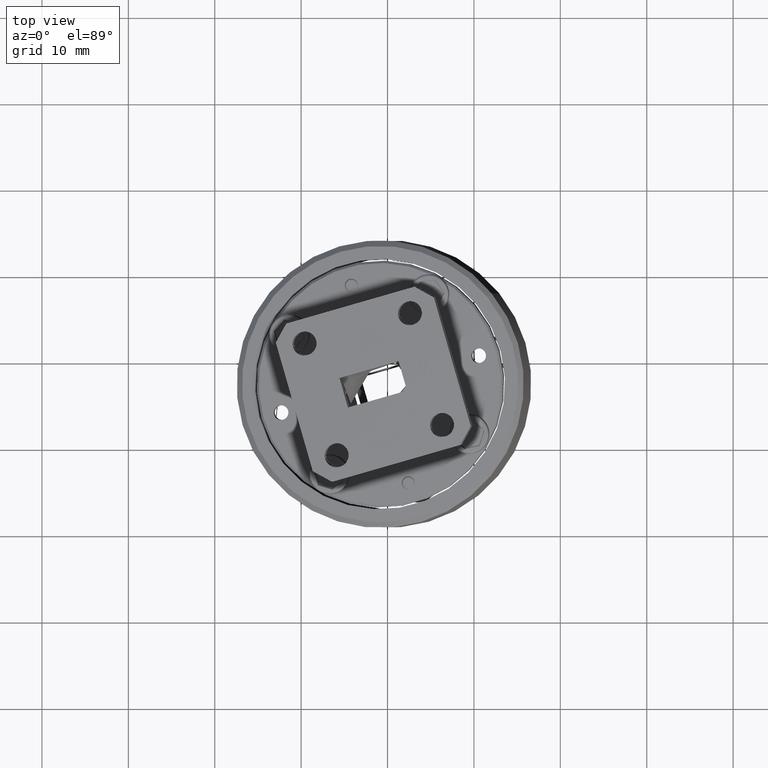
[diagram: clean part render]
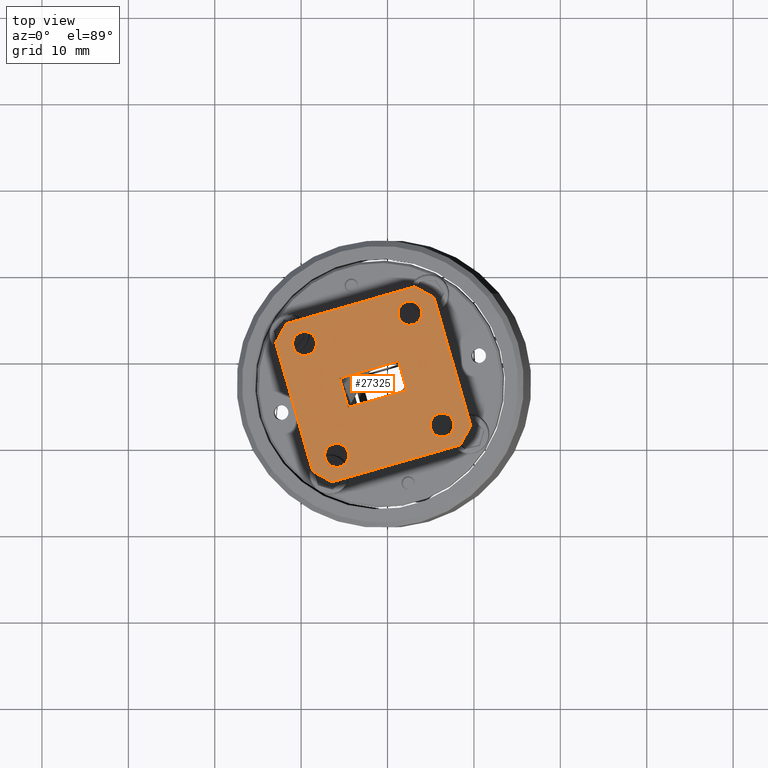
[diagram: same view with one face highlighted and labeled with its STEP entity id]
A machine part, top view. The second image highlights one B-rep face of the part: STEP entity #27325.
In plain terms, the highlighted planar face has unit normal (-0.0356, -0.0182, 0.9992).
Its self-contained STEP definition (entity closure, byte-faithful):
#22 = EDGE_CURVE ( 'NONE', #21384, #1998, #8473, .T. ) ;
#139 = VERTEX_POINT ( 'NONE', #38633 ) ;
#142 = FACE_BOUND ( 'NONE', #23208, .T. ) ;
#549 = CARTESIAN_POINT ( 'NONE',  ( -5.970583920700338600, -2.109734498378895000, 0.3332750552477059000 ) ) ;
#566 = CARTESIAN_POINT ( 'NONE',  ( -5.604788068984699800, -2.280394310620610800, 0.3432060932553792100 ) ) ;
#846 = VECTOR ( 'NONE', #9103, 39.37007874015748100 ) ;
#988 = DIRECTION ( 'NONE',  ( -0.9604149777040066300, -0.2757921029617932400, -0.03926558984306710600 ) ) ;
#1081 = FACE_BOUND ( 'NONE', #24406, .T. ) ;
#1582 = AXIS2_PLACEMENT_3D ( 'NONE', #549, #21269, #12058 ) ;
#1657 = DIRECTION ( 'NONE',  ( -0.9604149777040066300, -0.2757921029617932400, -0.03926558984306710600 ) ) ;
#1950 = ORIENTED_EDGE ( 'NONE', *, *, #38523, .T. ) ;
#1971 = ORIENTED_EDGE ( 'NONE', *, *, #36598, .T. ) ;
#1998 = VERTEX_POINT ( 'NONE', #21220 ) ;
#2149 = EDGE_CURVE ( 'NONE', #17209, #21824, #9108, .T. ) ;
#2582 = CARTESIAN_POINT ( 'NONE',  ( -5.803696040588877600, -1.786109592896608900, 0.3451222499993759600 ) ) ;
#2610 = EDGE_CURVE ( 'NONE', #29852, #9444, #30460, .T. ) ;
#2852 = LINE ( 'NONE', #36125, #33567 ) ;
#2909 = EDGE_CURVE ( 'NONE', #4630, #16173, #9062, .T. ) ;
#3055 = DIRECTION ( 'NONE',  ( 0.9604149777040063000, 0.2757921029617946300, 0.03926558984306730000 ) ) ;
#3461 = CARTESIAN_POINT ( 'NONE',  ( -5.751219797613774000, -1.771040551136935100, 0.3472676878371859200 ) ) ;
#3643 = VECTOR ( 'NONE', #3055, 39.37007874015748100 ) ;
#3885 = EDGE_CURVE ( 'NONE', #17209, #30244, #5714, .T. ) ;
#4270 = ORIENTED_EDGE ( 'NONE', *, *, #24807, .T. ) ;
#4435 = DIRECTION ( 'NONE',  ( 0.03562249074304842800, 0.01820857446431912300, -0.9991994225224706300 ) ) ;
#4630 = VERTEX_POINT ( 'NONE', #32807 ) ;
#4828 = ORIENTED_EDGE ( 'NONE', *, *, #2149, .F. ) ;
#5209 = DIRECTION ( 'NONE',  ( 0.03562249074304842800, 0.01820857446431912300, -0.9991994225224706300 ) ) ;
#5222 = DIRECTION ( 'NONE',  ( -0.9604149777040063000, -0.2757921029617945700, -0.03926558984306729300 ) ) ;
#5288 = CARTESIAN_POINT ( 'NONE',  ( -6.336379772415983600, -1.939074686137180100, 0.3233440172400323700 ) ) ;
#5363 = ORIENTED_EDGE ( 'NONE', *, *, #16424, .T. ) ;
#5580 = DIRECTION ( 'NONE',  ( -0.9604149777040066300, -0.2757921029617932400, -0.03926558984306710600 ) ) ;
#5714 = LINE ( 'NONE', #10137, #35502 ) ;
#6049 = EDGE_CURVE ( 'NONE', #29852, #30244, #17303, .T. ) ;
#6190 = PLANE ( 'NONE',  #1582 ) ;
#6285 = DIRECTION ( 'NONE',  ( 0.03562249074304842800, 0.01820857446431912300, -0.9991994225224706300 ) ) ;
#6518 = VERTEX_POINT ( 'NONE', #37230 ) ;
#6751 = CARTESIAN_POINT ( 'NONE',  ( -5.803696040588877600, -1.786109592896608900, 0.3451222499993759600 ) ) ;
#6842 = AXIS2_PLACEMENT_3D ( 'NONE', #12528, #6285, #24101 ) ;
#7144 = FACE_BOUND ( 'NONE', #14467, .T. ) ;
#7317 = DIRECTION ( 'NONE',  ( 0.8744798459300646700, -0.4845468495598424500, 0.02234613263546235400 ) ) ;
#8382 = CARTESIAN_POINT ( 'NONE',  ( -6.085701977948645000, -2.215618530838559400, 0.3272414356494379200 ) ) ;
#8436 = CARTESIAN_POINT ( 'NONE',  ( -6.415006852871170100, -1.920037864079152200, 0.3208877917875951300 ) ) ;
#8473 = CIRCLE ( 'NONE', #30361, 0.05463913432561672700 ) ;
#8531 = CARTESIAN_POINT ( 'NONE',  ( -5.709740554934906100, -2.310532394139958300, 0.3389152175797593400 ) ) ;
#9062 = LINE ( 'NONE', #16565, #36046 ) ;
#9103 = DIRECTION ( 'NONE',  ( -0.2762862804322258600, 0.9610448292144796500, 0.007663386003408402400 ) ) ;
#9108 = LINE ( 'NONE', #30177, #31863 ) ;
#9277 = DIRECTION ( 'NONE',  ( -0.9604149777040066300, -0.2757921029617932400, -0.03926558984306710600 ) ) ;
#9444 = VERTEX_POINT ( 'NONE', #8436 ) ;
#9607 = AXIS2_PLACEMENT_3D ( 'NONE', #33169, #9674, #9277 ) ;
#9674 = DIRECTION ( 'NONE',  ( 0.03562249074304842800, 0.01820857446431912300, -0.9991994225224706300 ) ) ;
#10065 = CARTESIAN_POINT ( 'NONE',  ( -5.657264311959802500, -2.295463352380284800, 0.3410606554175693000 ) ) ;
#10137 = CARTESIAN_POINT ( 'NONE',  ( -5.737980163627933700, -1.689209941438961900, 0.3492309070355076300 ) ) ;
#10145 = CARTESIAN_POINT ( 'NONE',  ( -5.781264707662702800, -1.665226096020117700, 0.3481248299011195400 ) ) ;
#10226 = LINE ( 'NONE', #37087, #12532 ) ;
#10259 = ORIENTED_EDGE ( 'NONE', *, *, #22, .T. ) ;
#10381 = EDGE_LOOP ( 'NONE', ( #13289, #29678, #36146, #1971, #31668, #11341, #4828, #18868 ) ) ;
#10751 = DIRECTION ( 'NONE',  ( 0.9604149777040063000, 0.2757921029617945700, 0.03926558984306729300 ) ) ;
#11008 = CARTESIAN_POINT ( 'NONE',  ( -5.714035659223422500, -1.645920648812792000, 0.3508734211901343200 ) ) ;
#11034 = VECTOR ( 'NONE', #18164, 39.37007874015748100 ) ;
#11323 = VECTOR ( 'NONE', #7317, 39.37007874015749600 ) ;
#11341 = ORIENTED_EDGE ( 'NONE', *, *, #30822, .T. ) ;
#12058 = DIRECTION ( 'NONE',  ( 0.9604149777040063000, 0.2757921029617946300, 0.03926558984306730000 ) ) ;
#12257 = CARTESIAN_POINT ( 'NONE',  ( -5.657264311959802500, -2.295463352380284800, 0.3410606554175693000 ) ) ;
#12528 = CARTESIAN_POINT ( 'NONE',  ( -6.137471800811806800, -2.433359403861182100, 0.3214278604960356700 ) ) ;
#12532 = VECTOR ( 'NONE', #19399, 39.37007874015748100 ) ;
#12817 = CARTESIAN_POINT ( 'NONE',  ( -6.084995557836703200, -2.418290362101508200, 0.3235732983338455700 ) ) ;
#13003 = DIRECTION ( 'NONE',  ( 0.03562249074304842800, 0.01820857446431912300, -0.9991994225224706300 ) ) ;
#13193 = CARTESIAN_POINT ( 'NONE',  ( -6.203187677772744400, -2.530259055318827800, 0.3173192034599041600 ) ) ;
#13209 = FACE_OUTER_BOUND ( 'NONE', #10381, .T. ) ;
#13270 = CARTESIAN_POINT ( 'NONE',  ( -6.283903529440880000, -1.924005644377506400, 0.3254894550778423300 ) ) ;
#13289 = ORIENTED_EDGE ( 'NONE', *, *, #6049, .F. ) ;
#13455 = LINE ( 'NONE', #20611, #3643 ) ;
#13540 = DIRECTION ( 'NONE',  ( -0.9604149777040066300, -0.2757921029617932400, -0.03926558984306710600 ) ) ;
#13882 = ORIENTED_EDGE ( 'NONE', *, *, #14299, .T. ) ;
#13934 = LINE ( 'NONE', #14538, #846 ) ;
#14299 = EDGE_CURVE ( 'NONE', #29209, #139, #37002, .T. ) ;
#14467 = EDGE_LOOP ( 'NONE', ( #37753, #13882 ) ) ;
#14538 = CARTESIAN_POINT ( 'NONE',  ( -6.085701977948645000, -2.215618530838559400, 0.3272414356494379200 ) ) ;
#15070 = FACE_BOUND ( 'NONE', #29027, .T. ) ;
#15427 = CARTESIAN_POINT ( 'NONE',  ( -5.816785784191521800, -2.138396742009256900, 0.3382358008054967000 ) ) ;
#15467 = CARTESIAN_POINT ( 'NONE',  ( -6.246472221807513500, -2.506275209899983600, 0.3162131263255160700 ) ) ;
#16173 = VERTEX_POINT ( 'NONE', #8382 ) ;
#16424 = EDGE_CURVE ( 'NONE', #1998, #21384, #34075, .T. ) ;
#16565 = CARTESIAN_POINT ( 'NONE',  ( -5.816785784191521800, -2.138396742009256900, 0.3382358008054967000 ) ) ;
#17209 = VERTEX_POINT ( 'NONE', #24033 ) ;
#17223 = EDGE_CURVE ( 'NONE', #30253, #9444, #2852, .T. ) ;
#17303 = LINE ( 'NONE', #11008, #36369 ) ;
#17395 = ORIENTED_EDGE ( 'NONE', *, *, #27872, .T. ) ;
#18018 = AXIS2_PLACEMENT_3D ( 'NONE', #2582, #23404, #5580 ) ;
#18164 = DIRECTION ( 'NONE',  ( 0.2762862804322258600, -0.9610448292144796500, -0.007663386003408402400 ) ) ;
#18278 = EDGE_CURVE ( 'NONE', #26118, #26319, #25173, .T. ) ;
#18848 = VERTEX_POINT ( 'NONE', #31383 ) ;
#18868 = ORIENTED_EDGE ( 'NONE', *, *, #3885, .T. ) ;
#19399 = DIRECTION ( 'NONE',  ( 0.4837520410451947600, 0.8745757819638093600, 0.03318379705518266500 ) ) ;
#19500 = DIRECTION ( 'NONE',  ( 0.03562249074304842800, 0.01820857446431912300, -0.9991994225224706300 ) ) ;
#19945 = EDGE_CURVE ( 'NONE', #23417, #37189, #27073, .T. ) ;
#20611 = CARTESIAN_POINT ( 'NONE',  ( -5.855465863452034000, -2.003850465919229800, 0.3393086748459738800 ) ) ;
#21220 = CARTESIAN_POINT ( 'NONE',  ( -6.189948043786909400, -2.448428445620856000, 0.3192824226582257600 ) ) ;
#21269 = DIRECTION ( 'NONE',  ( -0.03562249074304843500, -0.01820857446431912300, 0.9991994225224707400 ) ) ;
#21384 = VERTEX_POINT ( 'NONE', #12817 ) ;
#21570 = VERTEX_POINT ( 'NONE', #31107 ) ;
#21658 = EDGE_CURVE ( 'NONE', #6518, #21570, #25141, .T. ) ;
#21824 = VERTEX_POINT ( 'NONE', #26825 ) ;
#22270 = EDGE_CURVE ( 'NONE', #16173, #34546, #13934, .T. ) ;
#22738 = CARTESIAN_POINT ( 'NONE',  ( -6.231427286465776500, -1.908936602617832700, 0.3276348929156522300 ) ) ;
#22790 = CARTESIAN_POINT ( 'NONE',  ( -5.506820948899251900, -2.366704270723651400, 0.3451258816875780200 ) ) ;
#23208 = EDGE_LOOP ( 'NONE', ( #17395, #24760 ) ) ;
#23404 = DIRECTION ( 'NONE',  ( 0.03562249074304842800, 0.01820857446431912300, -0.9991994225224706300 ) ) ;
#23417 = VERTEX_POINT ( 'NONE', #566 ) ;
#23420 = CARTESIAN_POINT ( 'NONE',  ( -6.137471800811806800, -2.433359403861182100, 0.3214278604960356700 ) ) ;
#24033 = CARTESIAN_POINT ( 'NONE',  ( -5.694695619593165500, -1.713193786857806000, 0.3503369841698956700 ) ) ;
#24101 = DIRECTION ( 'NONE',  ( -0.9604149777040066300, -0.2757921029617932400, -0.03926558984306710600 ) ) ;
#24406 = EDGE_LOOP ( 'NONE', ( #5363, #10259 ) ) ;
#24493 = ORIENTED_EDGE ( 'NONE', *, *, #27878, .T. ) ;
#24760 = ORIENTED_EDGE ( 'NONE', *, *, #18278, .T. ) ;
#24807 = EDGE_CURVE ( 'NONE', #18848, #4630, #35707, .T. ) ;
#25141 = LINE ( 'NONE', #22790, #26058 ) ;
#25173 = CIRCLE ( 'NONE', #25591, 0.05463913432561672700 ) ;
#25591 = AXIS2_PLACEMENT_3D ( 'NONE', #13270, #19500, #1657 ) ;
#26025 = DIRECTION ( 'NONE',  ( -0.9604149777040066300, -0.2757921029617932400, -0.03926558984306710600 ) ) ;
#26058 = VECTOR ( 'NONE', #5222, 39.37007874015748900 ) ;
#26118 = VERTEX_POINT ( 'NONE', #22738 ) ;
#26192 = CIRCLE ( 'NONE', #9607, 0.05463913432561672700 ) ;
#26319 = VERTEX_POINT ( 'NONE', #5288 ) ;
#26825 = CARTESIAN_POINT ( 'NONE',  ( -5.526160988529508900, -2.299431132678638100, 0.3456623187078165500 ) ) ;
#26969 = EDGE_CURVE ( 'NONE', #139, #29209, #29496, .T. ) ;
#27073 = CIRCLE ( 'NONE', #31080, 0.05463913432561672700 ) ;
#27325 = ADVANCED_FACE ( 'NONE', ( #29021, #1081, #142, #15070, #7144, #13209 ), #6190, .T. ) ;
#27585 = DIRECTION ( 'NONE',  ( 0.2762862804322258600, -0.9610448292144796500, -0.007663386003408402400 ) ) ;
#27666 = ORIENTED_EDGE ( 'NONE', *, *, #19945, .T. ) ;
#27872 = EDGE_CURVE ( 'NONE', #26319, #26118, #26192, .T. ) ;
#27878 = EDGE_CURVE ( 'NONE', #37189, #23417, #34078, .T. ) ;
#28234 = CARTESIAN_POINT ( 'NONE',  ( -6.124382057209156300, -2.081072254748532300, 0.3283143096899149800 ) ) ;
#28940 = DIRECTION ( 'NONE',  ( -0.4837520410451947600, -0.8745757819638093600, -0.03318379705518266500 ) ) ;
#29021 = FACE_BOUND ( 'NONE', #32551, .T. ) ;
#29027 = EDGE_LOOP ( 'NONE', ( #31033, #1950, #4270, #32698 ) ) ;
#29209 = VERTEX_POINT ( 'NONE', #3461 ) ;
#29450 = LINE ( 'NONE', #13193, #11323 ) ;
#29496 = CIRCLE ( 'NONE', #31482, 0.05463913432561672700 ) ;
#29678 = ORIENTED_EDGE ( 'NONE', *, *, #2610, .T. ) ;
#29852 = VERTEX_POINT ( 'NONE', #36719 ) ;
#30067 = DIRECTION ( 'NONE',  ( -0.9604149777040066300, -0.2757921029617932400, -0.03926558984306710600 ) ) ;
#30177 = CARTESIAN_POINT ( 'NONE',  ( -5.506820948899251900, -2.366704270723651400, 0.3451258816875780200 ) ) ;
#30244 = VERTEX_POINT ( 'NONE', #10145 ) ;
#30253 = VERTEX_POINT ( 'NONE', #15467 ) ;
#30361 = AXIS2_PLACEMENT_3D ( 'NONE', #23420, #5209, #26025 ) ;
#30448 = DIRECTION ( 'NONE',  ( 0.03562249074304842800, 0.01820857446431912300, -0.9991994225224706300 ) ) ;
#30460 = LINE ( 'NONE', #35054, #33258 ) ;
#30822 = EDGE_CURVE ( 'NONE', #6518, #21824, #10226, .T. ) ;
#30914 = DIRECTION ( 'NONE',  ( -0.8744798459300646700, 0.4845468495598424500, -0.02234613263546235400 ) ) ;
#31033 = ORIENTED_EDGE ( 'NONE', *, *, #22270, .T. ) ;
#31080 = AXIS2_PLACEMENT_3D ( 'NONE', #10065, #4435, #13540 ) ;
#31107 = CARTESIAN_POINT ( 'NONE',  ( -6.159903133737976200, -2.554242900737671900, 0.3184252805942922000 ) ) ;
#31383 = CARTESIAN_POINT ( 'NONE',  ( -5.855465863452034000, -2.003850465919229800, 0.3393086748459738800 ) ) ;
#31482 = AXIS2_PLACEMENT_3D ( 'NONE', #6751, #13003, #988 ) ;
#31668 = ORIENTED_EDGE ( 'NONE', *, *, #21658, .F. ) ;
#31863 = VECTOR ( 'NONE', #27585, 39.37007874015748100 ) ;
#32551 = EDGE_LOOP ( 'NONE', ( #24493, #27666 ) ) ;
#32698 = ORIENTED_EDGE ( 'NONE', *, *, #2909, .T. ) ;
#32807 = CARTESIAN_POINT ( 'NONE',  ( -5.816785784191521800, -2.138396742009256900, 0.3382358008054967000 ) ) ;
#33098 = DIRECTION ( 'NONE',  ( -0.2762862804322258600, 0.9610448292144796500, 0.007663386003408402400 ) ) ;
#33169 = CARTESIAN_POINT ( 'NONE',  ( -6.283903529440880000, -1.924005644377506400, 0.3254894550778423300 ) ) ;
#33258 = VECTOR ( 'NONE', #28940, 39.37007874015748100 ) ;
#33567 = VECTOR ( 'NONE', #33098, 39.37007874015748100 ) ;
#34075 = CIRCLE ( 'NONE', #6842, 0.05463913432561672700 ) ;
#34078 = CIRCLE ( 'NONE', #34244, 0.05463913432561672700 ) ;
#34244 = AXIS2_PLACEMENT_3D ( 'NONE', #12257, #30448, #30067 ) ;
#34546 = VERTEX_POINT ( 'NONE', #28234 ) ;
#35054 = CARTESIAN_POINT ( 'NONE',  ( -6.391062348466658000, -1.876748571452981900, 0.3225303059422218200 ) ) ;
#35502 = VECTOR ( 'NONE', #30914, 39.37007874015749600 ) ;
#35707 = LINE ( 'NONE', #15427, #11034 ) ;
#36046 = VECTOR ( 'NONE', #37358, 39.37007874015748100 ) ;
#36125 = CARTESIAN_POINT ( 'NONE',  ( -6.227132182177257400, -2.573548347944997900, 0.3156766893052774800 ) ) ;
#36146 = ORIENTED_EDGE ( 'NONE', *, *, #17223, .F. ) ;
#36369 = VECTOR ( 'NONE', #10751, 39.37007874015748900 ) ;
#36598 = EDGE_CURVE ( 'NONE', #30253, #21570, #29450, .T. ) ;
#36719 = CARTESIAN_POINT ( 'NONE',  ( -6.367117844062145000, -1.833459278826811800, 0.3241728200968485000 ) ) ;
#37002 = CIRCLE ( 'NONE', #18018, 0.05463913432561672700 ) ;
#37087 = CARTESIAN_POINT ( 'NONE',  ( -5.550105492934020100, -2.342720425304807300, 0.3440198045531899200 ) ) ;
#37189 = VERTEX_POINT ( 'NONE', #8531 ) ;
#37230 = CARTESIAN_POINT ( 'NONE',  ( -5.574049997338533100, -2.386009717930976900, 0.3423772903985632400 ) ) ;
#37358 = DIRECTION ( 'NONE',  ( -0.9604149777040063000, -0.2757921029617946300, -0.03926558984306730000 ) ) ;
#37753 = ORIENTED_EDGE ( 'NONE', *, *, #26969, .T. ) ;
#38523 = EDGE_CURVE ( 'NONE', #34546, #18848, #13455, .T. ) ;
#38633 = CARTESIAN_POINT ( 'NONE',  ( -5.856172283563981100, -1.801178634656282600, 0.3429768121615660600 ) ) ;